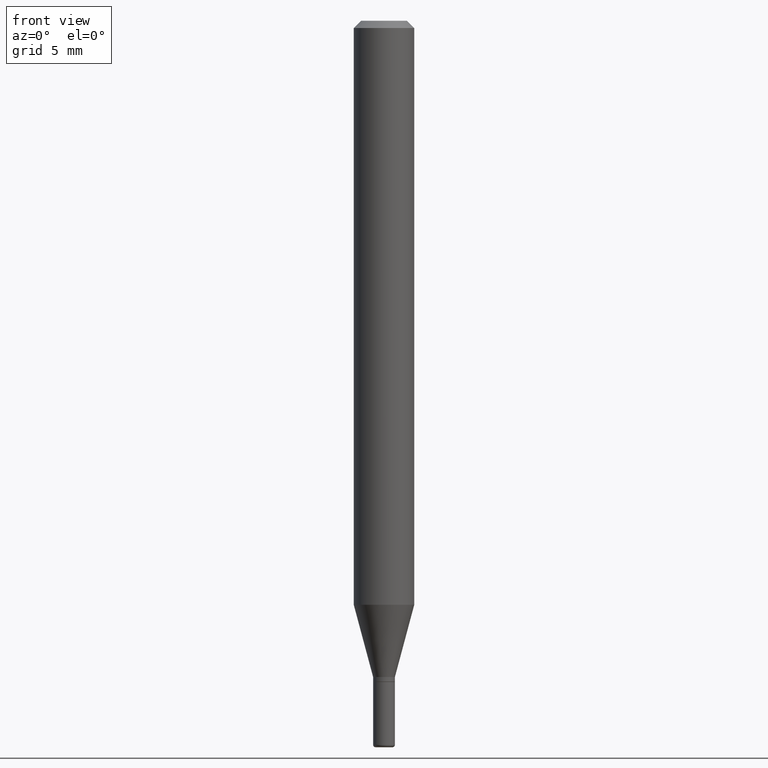
[diagram: clean part render]
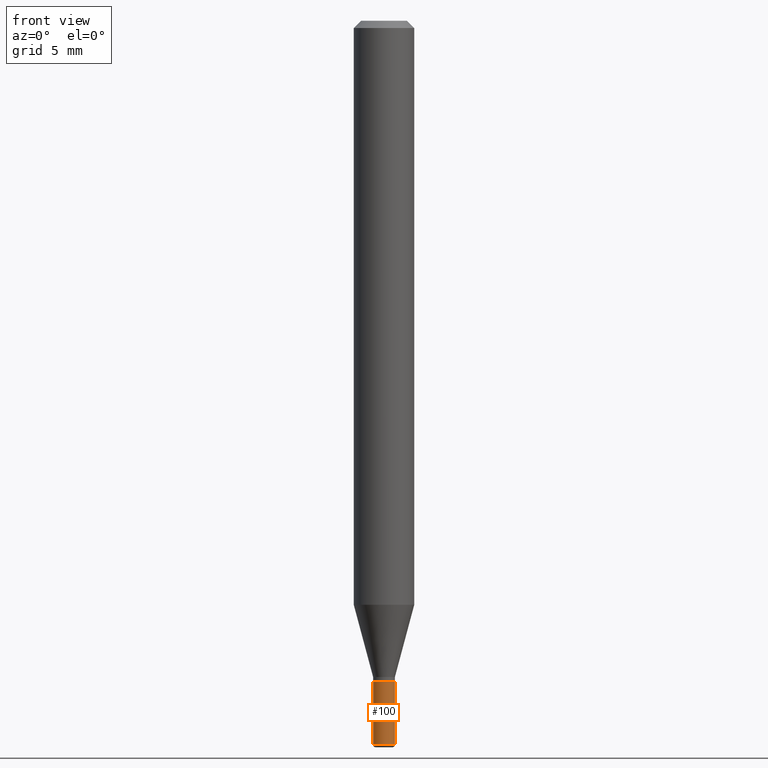
[diagram: same view with one face highlighted and labeled with its STEP entity id]
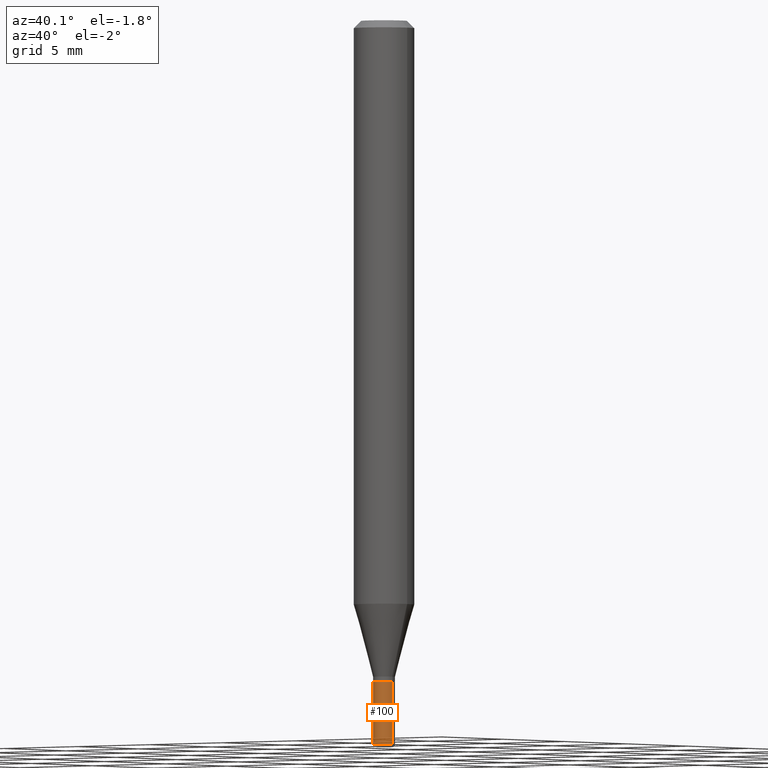
[diagram: same view with one face highlighted and labeled with its STEP entity id]
A machine part, front view. The second image highlights one B-rep face of the part: STEP entity #100.
A second angle (auxiliary view) of the same face is appended — the face is thin or edge-on in the first view.
In plain terms, the highlighted cylindrical surface (edge-blend (fillet) strip) has radius 0.5715 mm, axis along (-0, 0, 1).
Its self-contained STEP definition (entity closure, byte-faithful):
#2 = CIRCLE ( 'NONE', #133, 0.02249999999999999917 ) ;
#11 = CARTESIAN_POINT ( 'NONE',  ( 3.655975865246779683E-29, -5.219764601570503930E-15, -1.495000000000000329 ) ) ;
#46 = CARTESIAN_POINT ( 'NONE',  ( 0.02250000000000008937, -1.571166602479416074E-16, 1.097139774554090038E-30 ) ) ;
#55 = EDGE_CURVE ( 'NONE', #439, #469, #381, .T. ) ;
#63 = EDGE_CURVE ( 'NONE', #439, #87, #134, .T. ) ;
#79 = DIRECTION ( 'NONE',  ( -2.445468806185136597E-29, 3.491481338843145583E-15, 1.000000000000000000 ) ) ;
#87 = VERTEX_POINT ( 'NONE', #466 ) ;
#89 = VECTOR ( 'NONE', #411, 39.37007874015748143 ) ;
#100 = ADVANCED_FACE ( 'NONE', ( #281 ), #431, .T. ) ;
#115 = DIRECTION ( 'NONE',  ( -2.445468806185136877E-29, 3.491481338843145188E-15, 1.000000000000000000 ) ) ;
#133 = AXIS2_PLACEMENT_3D ( 'NONE', #445, #488, #263 ) ;
#134 = CIRCLE ( 'NONE', #422, 0.02250000000000017958 ) ;
#175 = DIRECTION ( 'NONE',  ( 1.000000000000000000, -6.982962677686255667E-15, 0.000000000000000000 ) ) ;
#188 = VECTOR ( 'NONE', #115, 39.37007874015748143 ) ;
#227 = EDGE_CURVE ( 'NONE', #469, #284, #2, .T. ) ;
#242 = ORIENTED_EDGE ( 'NONE', *, *, #319, .T. ) ;
#260 = CARTESIAN_POINT ( 'NONE',  ( -0.02250000000000008937, 1.598721155460231769E-16, -1.106760395307358334E-30 ) ) ;
#263 = DIRECTION ( 'NONE',  ( 1.000000000000000000, -6.982962677686269077E-15, 0.000000000000000000 ) ) ;
#270 = DIRECTION ( 'NONE',  ( -2.445468806185136597E-29, 3.491481338843145583E-15, 1.000000000000000000 ) ) ;
#281 = FACE_OUTER_BOUND ( 'NONE', #369, .T. ) ;
#284 = VERTEX_POINT ( 'NONE', #429 ) ;
#296 = ORIENTED_EDGE ( 'NONE', *, *, #227, .F. ) ;
#300 = AXIS2_PLACEMENT_3D ( 'NONE', #489, #270, #344 ) ;
#319 = EDGE_CURVE ( 'NONE', #87, #284, #361, .T. ) ;
#344 = DIRECTION ( 'NONE',  ( 1.000000000000000000, -6.982962677686265922E-15, 4.876176775795936353E-29 ) ) ;
#346 = CARTESIAN_POINT ( 'NONE',  ( -0.02250000000000017958, -4.832946198999673555E-15, -1.495000000000000329 ) ) ;
#356 = CARTESIAN_POINT ( 'NONE',  ( -0.02249999999999999917, -4.832946198999675921E-15, -1.364999999999999991 ) ) ;
#361 = LINE ( 'NONE', #46, #188 ) ;
#362 = ORIENTED_EDGE ( 'NONE', *, *, #55, .F. ) ;
#369 = EDGE_LOOP ( 'NONE', ( #362, #483, #242, #296 ) ) ;
#381 = LINE ( 'NONE', #260, #89 ) ;
#411 = DIRECTION ( 'NONE',  ( -2.445468806185136877E-29, 3.491481338843145188E-15, 1.000000000000000000 ) ) ;
#422 = AXIS2_PLACEMENT_3D ( 'NONE', #11, #79, #175 ) ;
#429 = CARTESIAN_POINT ( 'NONE',  ( 0.02249999999999999917, -4.922988687768834913E-15, -1.364999999999999991 ) ) ;
#431 = CYLINDRICAL_SURFACE ( 'NONE', #300, 0.02250000000000008937 ) ;
#439 = VERTEX_POINT ( 'NONE', #346 ) ;
#445 = CARTESIAN_POINT ( 'NONE',  ( 3.338064920442711836E-29, -4.765872027520893280E-15, -1.364999999999999991 ) ) ;
#466 = CARTESIAN_POINT ( 'NONE',  ( 0.02250000000000017958, -5.376881261818446351E-15, -1.495000000000000329 ) ) ;
#469 = VERTEX_POINT ( 'NONE', #356 ) ;
#483 = ORIENTED_EDGE ( 'NONE', *, *, #63, .T. ) ;
#488 = DIRECTION ( 'NONE',  ( -2.445468806185136597E-29, 3.491481338843145583E-15, 1.000000000000000000 ) ) ;
#489 = CARTESIAN_POINT ( 'NONE',  ( 0.000000000000000000, 0.000000000000000000, 0.000000000000000000 ) ) ;